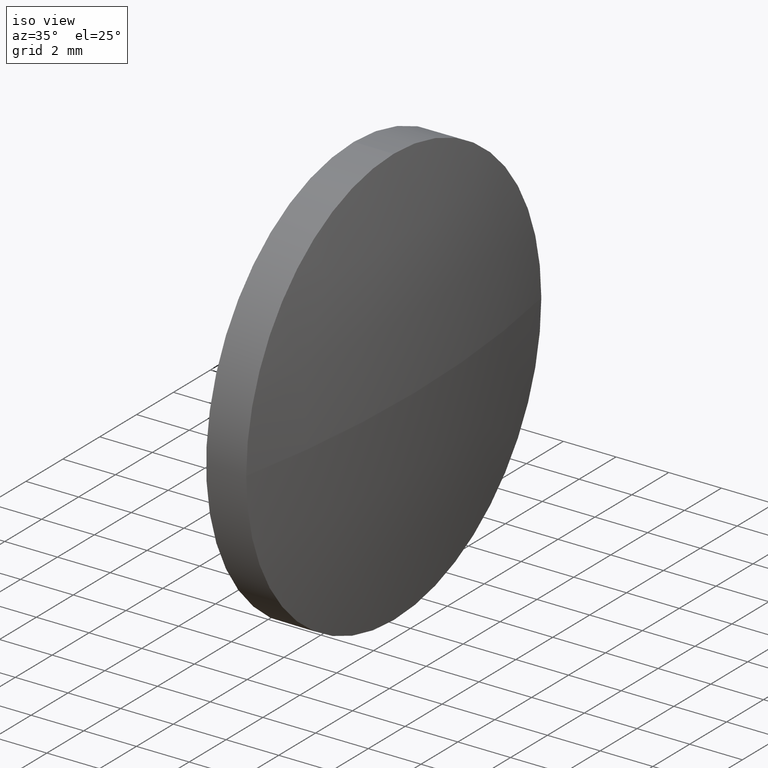
[diagram: clean part render]
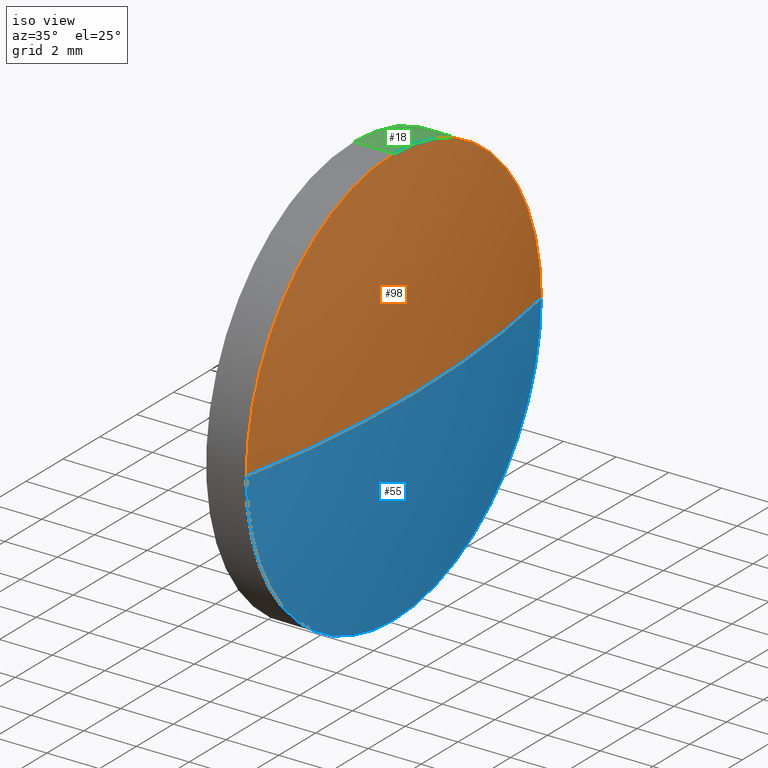
[diagram: same view with three faces highlighted in distinct colors, each labeled with its STEP entity id]
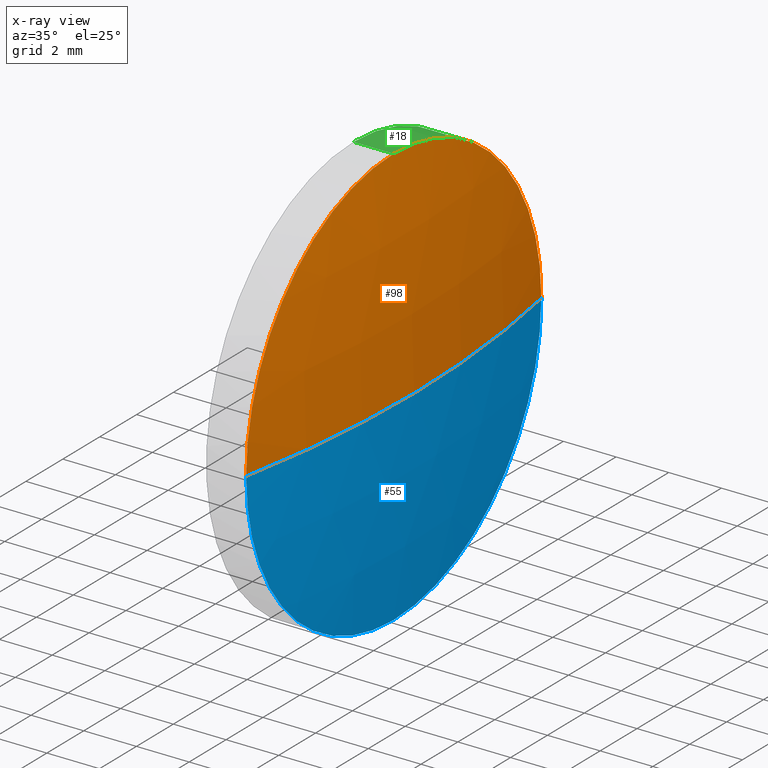
[diagram: x-ray of the same camera — body ghosted, the three highlighted faces saturated]
A machine part, iso view with three faces highlighted in distinct colors.
The next image is the same camera in x-ray (body ghosted, the three faces saturated) — at least one of them is partly hidden behind the body in this view.
Their STEP definitions:

[orange] entity #98 — the highlighted spherical surface has radius 41.4156 mm.
#2 = EDGE_CURVE ( 'NONE', #76, #46, #73, .T. ) ;
#3 = SPHERICAL_SURFACE ( 'NONE', #153, 41.41564102564099400 ) ;
#5 = EDGE_CURVE ( 'NONE', #178, #121, #142, .T. ) ;
#7 = DIRECTION ( 'NONE',  ( 0.0000000000000000000, 0.0000000000000000000, 1.000000000000000000 ) ) ;
#10 = CARTESIAN_POINT ( 'NONE',  ( 609.6443734842783900, 155.6021442105514700, 0.0000000000000000000 ) ) ;
#12 = CIRCLE ( 'NONE', #79, 41.41564102564099400 ) ;
#20 = EDGE_CURVE ( 'NONE', #46, #178, #84, .T. ) ;
#30 = AXIS2_PLACEMENT_3D ( 'NONE', #33, #150, #166 ) ;
#33 = CARTESIAN_POINT ( 'NONE',  ( 569.0087324586373800, 147.6021442105514400, 0.0000000000000000000 ) ) ;
#46 = VERTEX_POINT ( 'NONE', #133 ) ;
#53 = DIRECTION ( 'NONE',  ( 0.0000000000000000000, 0.0000000000000000000, 1.000000000000000000 ) ) ;
#58 = EDGE_CURVE ( 'NONE', #76, #121, #12, .T. ) ;
#60 = DIRECTION ( 'NONE',  ( -0.0000000000000000000, 0.0000000000000000000, 1.000000000000000000 ) ) ;
#61 = EDGE_LOOP ( 'NONE', ( #181, #129, #167, #80 ) ) ;
#64 = CARTESIAN_POINT ( 'NONE',  ( 569.0087324586373800, 147.6021442105514400, 0.0000000000000000000 ) ) ;
#65 = DIRECTION ( 'NONE',  ( -1.000000000000000000, -0.0000000000000000000, -0.0000000000000000000 ) ) ;
#73 = CIRCLE ( 'NONE', #30, 41.41564102564099400 ) ;
#76 = VERTEX_POINT ( 'NONE', #86 ) ;
#77 = CARTESIAN_POINT ( 'NONE',  ( 609.6443734842783900, 147.6021442105515000, 0.0000000000000000000 ) ) ;
#79 = AXIS2_PLACEMENT_3D ( 'NONE', #104, #60, #176 ) ;
#80 = ORIENTED_EDGE ( 'NONE', *, *, #20, .F. ) ;
#84 = CIRCLE ( 'NONE', #157, 7.999999999999979600 ) ;
#86 = CARTESIAN_POINT ( 'NONE',  ( 610.4243734842783600, 147.6021442105514400, 0.0000000000000000000 ) ) ;
#91 = DIRECTION ( 'NONE',  ( 0.0000000000000000000, 1.000000000000000000, 0.0000000000000000000 ) ) ;
#93 = DIRECTION ( 'NONE',  ( -0.0000000000000000000, 0.0000000000000000000, -1.000000000000000000 ) ) ;
#95 = DIRECTION ( 'NONE',  ( -1.000000000000000000, -0.0000000000000000000, -0.0000000000000000000 ) ) ;
#98 = ADVANCED_FACE ( 'NONE', ( #185 ), #3, .T. ) ;
#104 = CARTESIAN_POINT ( 'NONE',  ( 569.0087324586373800, 147.6021442105514400, 0.0000000000000000000 ) ) ;
#121 = VERTEX_POINT ( 'NONE', #10 ) ;
#129 = ORIENTED_EDGE ( 'NONE', *, *, #58, .T. ) ;
#133 = CARTESIAN_POINT ( 'NONE',  ( 609.6443734842783900, 139.6021442105515000, -9.797174393178782300E-016 ) ) ;
#142 = CIRCLE ( 'NONE', #145, 7.999999999999979600 ) ;
#145 = AXIS2_PLACEMENT_3D ( 'NONE', #77, #95, #53 ) ;
#148 = CARTESIAN_POINT ( 'NONE',  ( 609.6443734842783900, 147.6021442105515000, 0.0000000000000000000 ) ) ;
#150 = DIRECTION ( 'NONE',  ( 0.0000000000000000000, 1.224646799147353200E-016, -1.000000000000000000 ) ) ;
#153 = AXIS2_PLACEMENT_3D ( 'NONE', #64, #93, #91 ) ;
#157 = AXIS2_PLACEMENT_3D ( 'NONE', #148, #65, #7 ) ;
#166 = DIRECTION ( 'NONE',  ( 0.0000000000000000000, 1.000000000000000000, 1.224646799147353200E-016 ) ) ;
#167 = ORIENTED_EDGE ( 'NONE', *, *, #5, .F. ) ;
#170 = CARTESIAN_POINT ( 'NONE',  ( 609.6443734842783900, 147.6021442105515000, 7.999999999999979600 ) ) ;
#176 = DIRECTION ( 'NONE',  ( 1.000000000000000000, 0.0000000000000000000, 0.0000000000000000000 ) ) ;
#178 = VERTEX_POINT ( 'NONE', #170 ) ;
#181 = ORIENTED_EDGE ( 'NONE', *, *, #2, .F. ) ;
#185 = FACE_OUTER_BOUND ( 'NONE', #61, .T. ) ;

[blue] entity #55 — the highlighted spherical surface has radius 41.4156 mm.
#2 = EDGE_CURVE ( 'NONE', #76, #46, #73, .T. ) ;
#4 = ORIENTED_EDGE ( 'NONE', *, *, #2, .T. ) ;
#8 = CARTESIAN_POINT ( 'NONE',  ( 569.0087324586373800, 147.6021442105514400, 0.0000000000000000000 ) ) ;
#10 = CARTESIAN_POINT ( 'NONE',  ( 609.6443734842783900, 155.6021442105514700, 0.0000000000000000000 ) ) ;
#12 = CIRCLE ( 'NONE', #79, 41.41564102564099400 ) ;
#15 = DIRECTION ( 'NONE',  ( -1.000000000000000000, -0.0000000000000000000, -0.0000000000000000000 ) ) ;
#16 = EDGE_CURVE ( 'NONE', #121, #117, #69, .T. ) ;
#21 = ORIENTED_EDGE ( 'NONE', *, *, #16, .F. ) ;
#26 = CARTESIAN_POINT ( 'NONE',  ( 609.6443734842783900, 147.6021442105515000, 0.0000000000000000000 ) ) ;
#30 = AXIS2_PLACEMENT_3D ( 'NONE', #33, #150, #166 ) ;
#33 = CARTESIAN_POINT ( 'NONE',  ( 569.0087324586373800, 147.6021442105514400, 0.0000000000000000000 ) ) ;
#37 = ORIENTED_EDGE ( 'NONE', *, *, #58, .F. ) ;
#38 = CIRCLE ( 'NONE', #174, 7.999999999999979600 ) ;
#46 = VERTEX_POINT ( 'NONE', #133 ) ;
#55 = ADVANCED_FACE ( 'NONE', ( #175 ), #97, .T. ) ;
#58 = EDGE_CURVE ( 'NONE', #76, #121, #12, .T. ) ;
#59 = EDGE_LOOP ( 'NONE', ( #37, #4, #115, #21 ) ) ;
#60 = DIRECTION ( 'NONE',  ( -0.0000000000000000000, 0.0000000000000000000, 1.000000000000000000 ) ) ;
#66 = DIRECTION ( 'NONE',  ( 0.0000000000000000000, 0.0000000000000000000, 1.000000000000000000 ) ) ;
#69 = CIRCLE ( 'NONE', #149, 7.999999999999979600 ) ;
#71 = DIRECTION ( 'NONE',  ( -1.000000000000000000, -0.0000000000000000000, -0.0000000000000000000 ) ) ;
#73 = CIRCLE ( 'NONE', #30, 41.41564102564099400 ) ;
#75 = AXIS2_PLACEMENT_3D ( 'NONE', #8, #110, #135 ) ;
#76 = VERTEX_POINT ( 'NONE', #86 ) ;
#79 = AXIS2_PLACEMENT_3D ( 'NONE', #104, #60, #176 ) ;
#86 = CARTESIAN_POINT ( 'NONE',  ( 610.4243734842783600, 147.6021442105514400, 0.0000000000000000000 ) ) ;
#97 = SPHERICAL_SURFACE ( 'NONE', #75, 41.41564102564099400 ) ;
#104 = CARTESIAN_POINT ( 'NONE',  ( 569.0087324586373800, 147.6021442105514400, 0.0000000000000000000 ) ) ;
#110 = DIRECTION ( 'NONE',  ( -0.0000000000000000000, 0.0000000000000000000, -1.000000000000000000 ) ) ;
#115 = ORIENTED_EDGE ( 'NONE', *, *, #161, .F. ) ;
#117 = VERTEX_POINT ( 'NONE', #123 ) ;
#121 = VERTEX_POINT ( 'NONE', #10 ) ;
#123 = CARTESIAN_POINT ( 'NONE',  ( 609.6443734842783900, 147.6021442105515000, -7.999999999999979600 ) ) ;
#131 = CARTESIAN_POINT ( 'NONE',  ( 609.6443734842783900, 147.6021442105515000, 0.0000000000000000000 ) ) ;
#133 = CARTESIAN_POINT ( 'NONE',  ( 609.6443734842783900, 139.6021442105515000, -9.797174393178782300E-016 ) ) ;
#135 = DIRECTION ( 'NONE',  ( 0.0000000000000000000, 1.000000000000000000, 0.0000000000000000000 ) ) ;
#149 = AXIS2_PLACEMENT_3D ( 'NONE', #131, #15, #66 ) ;
#150 = DIRECTION ( 'NONE',  ( 0.0000000000000000000, 1.224646799147353200E-016, -1.000000000000000000 ) ) ;
#161 = EDGE_CURVE ( 'NONE', #117, #46, #38, .T. ) ;
#166 = DIRECTION ( 'NONE',  ( 0.0000000000000000000, 1.000000000000000000, 1.224646799147353200E-016 ) ) ;
#169 = DIRECTION ( 'NONE',  ( 0.0000000000000000000, 0.0000000000000000000, 1.000000000000000000 ) ) ;
#174 = AXIS2_PLACEMENT_3D ( 'NONE', #26, #71, #169 ) ;
#175 = FACE_OUTER_BOUND ( 'NONE', #59, .T. ) ;
#176 = DIRECTION ( 'NONE',  ( 1.000000000000000000, 0.0000000000000000000, 0.0000000000000000000 ) ) ;

[green] entity #18 — the highlighted cylindrical surface (partial cylindrical patch) has radius 8 mm, axis along (-1, -0, -0).
#1 = ORIENTED_EDGE ( 'NONE', *, *, #16, .T. ) ;
#5 = EDGE_CURVE ( 'NONE', #178, #121, #142, .T. ) ;
#6 = DIRECTION ( 'NONE',  ( -1.000000000000000000, -0.0000000000000000000, -0.0000000000000000000 ) ) ;
#10 = CARTESIAN_POINT ( 'NONE',  ( 609.6443734842783900, 155.6021442105514700, 0.0000000000000000000 ) ) ;
#11 = ORIENTED_EDGE ( 'NONE', *, *, #5, .T. ) ;
#15 = DIRECTION ( 'NONE',  ( -1.000000000000000000, -0.0000000000000000000, -0.0000000000000000000 ) ) ;
#16 = EDGE_CURVE ( 'NONE', #121, #117, #69, .T. ) ;
#18 = ADVANCED_FACE ( 'NONE', ( #168 ), #48, .T. ) ;
#19 = DIRECTION ( 'NONE',  ( 0.0000000000000000000, 0.0000000000000000000, 1.000000000000000000 ) ) ;
#22 = VECTOR ( 'NONE', #74, 1000.000000000000000 ) ;
#23 = DIRECTION ( 'NONE',  ( -1.000000000000000000, -0.0000000000000000000, -0.0000000000000000000 ) ) ;
#24 = CARTESIAN_POINT ( 'NONE',  ( 608.1243734842782900, 147.6021442105515000, 7.999999999999979600 ) ) ;
#25 = CARTESIAN_POINT ( 'NONE',  ( 606.2015567794326200, 147.6021442105515000, -7.999999999999979600 ) ) ;
#41 = CARTESIAN_POINT ( 'NONE',  ( 608.1243734842782900, 147.6021442105515000, -7.999999999999979600 ) ) ;
#45 = ORIENTED_EDGE ( 'NONE', *, *, #105, .F. ) ;
#48 = CYLINDRICAL_SURFACE ( 'NONE', #49, 7.999999999999979600 ) ;
#49 = AXIS2_PLACEMENT_3D ( 'NONE', #118, #6, #19 ) ;
#50 = ORIENTED_EDGE ( 'NONE', *, *, #90, .T. ) ;
#51 = CARTESIAN_POINT ( 'NONE',  ( 608.1243734842782900, 147.6021442105515000, 0.0000000000000000000 ) ) ;
#53 = DIRECTION ( 'NONE',  ( 0.0000000000000000000, 0.0000000000000000000, 1.000000000000000000 ) ) ;
#66 = DIRECTION ( 'NONE',  ( 0.0000000000000000000, 0.0000000000000000000, 1.000000000000000000 ) ) ;
#69 = CIRCLE ( 'NONE', #149, 7.999999999999979600 ) ;
#74 = DIRECTION ( 'NONE',  ( -1.000000000000000000, -0.0000000000000000000, -0.0000000000000000000 ) ) ;
#77 = CARTESIAN_POINT ( 'NONE',  ( 609.6443734842783900, 147.6021442105515000, 0.0000000000000000000 ) ) ;
#78 = LINE ( 'NONE', #103, #144 ) ;
#87 = ORIENTED_EDGE ( 'NONE', *, *, #138, .F. ) ;
#90 = EDGE_CURVE ( 'NONE', #117, #137, #119, .T. ) ;
#95 = DIRECTION ( 'NONE',  ( -1.000000000000000000, -0.0000000000000000000, -0.0000000000000000000 ) ) ;
#103 = CARTESIAN_POINT ( 'NONE',  ( 606.2015567794326200, 147.6021442105515000, 7.999999999999979600 ) ) ;
#105 = EDGE_CURVE ( 'NONE', #152, #137, #183, .T. ) ;
#116 = EDGE_LOOP ( 'NONE', ( #1, #50, #45, #87, #11 ) ) ;
#117 = VERTEX_POINT ( 'NONE', #123 ) ;
#118 = CARTESIAN_POINT ( 'NONE',  ( 606.2015567794326200, 147.6021442105515000, 0.0000000000000000000 ) ) ;
#119 = LINE ( 'NONE', #25, #22 ) ;
#121 = VERTEX_POINT ( 'NONE', #10 ) ;
#123 = CARTESIAN_POINT ( 'NONE',  ( 609.6443734842783900, 147.6021442105515000, -7.999999999999979600 ) ) ;
#131 = CARTESIAN_POINT ( 'NONE',  ( 609.6443734842783900, 147.6021442105515000, 0.0000000000000000000 ) ) ;
#137 = VERTEX_POINT ( 'NONE', #41 ) ;
#138 = EDGE_CURVE ( 'NONE', #178, #152, #78, .T. ) ;
#142 = CIRCLE ( 'NONE', #145, 7.999999999999979600 ) ;
#144 = VECTOR ( 'NONE', #23, 1000.000000000000000 ) ;
#145 = AXIS2_PLACEMENT_3D ( 'NONE', #77, #95, #53 ) ;
#146 = DIRECTION ( 'NONE',  ( -1.000000000000000000, -0.0000000000000000000, -0.0000000000000000000 ) ) ;
#149 = AXIS2_PLACEMENT_3D ( 'NONE', #131, #15, #66 ) ;
#151 = AXIS2_PLACEMENT_3D ( 'NONE', #51, #146, #162 ) ;
#152 = VERTEX_POINT ( 'NONE', #24 ) ;
#162 = DIRECTION ( 'NONE',  ( 0.0000000000000000000, 0.0000000000000000000, 1.000000000000000000 ) ) ;
#168 = FACE_OUTER_BOUND ( 'NONE', #116, .T. ) ;
#170 = CARTESIAN_POINT ( 'NONE',  ( 609.6443734842783900, 147.6021442105515000, 7.999999999999979600 ) ) ;
#178 = VERTEX_POINT ( 'NONE', #170 ) ;
#183 = CIRCLE ( 'NONE', #151, 7.999999999999979600 ) ;